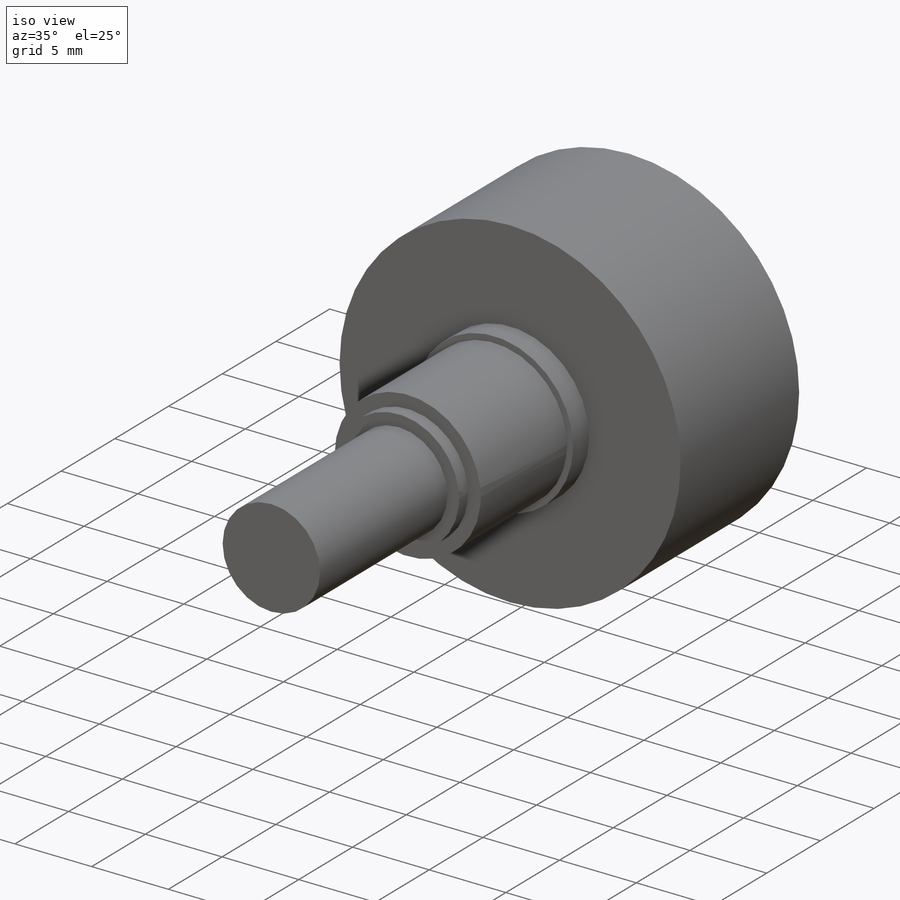
[diagram: iso view]
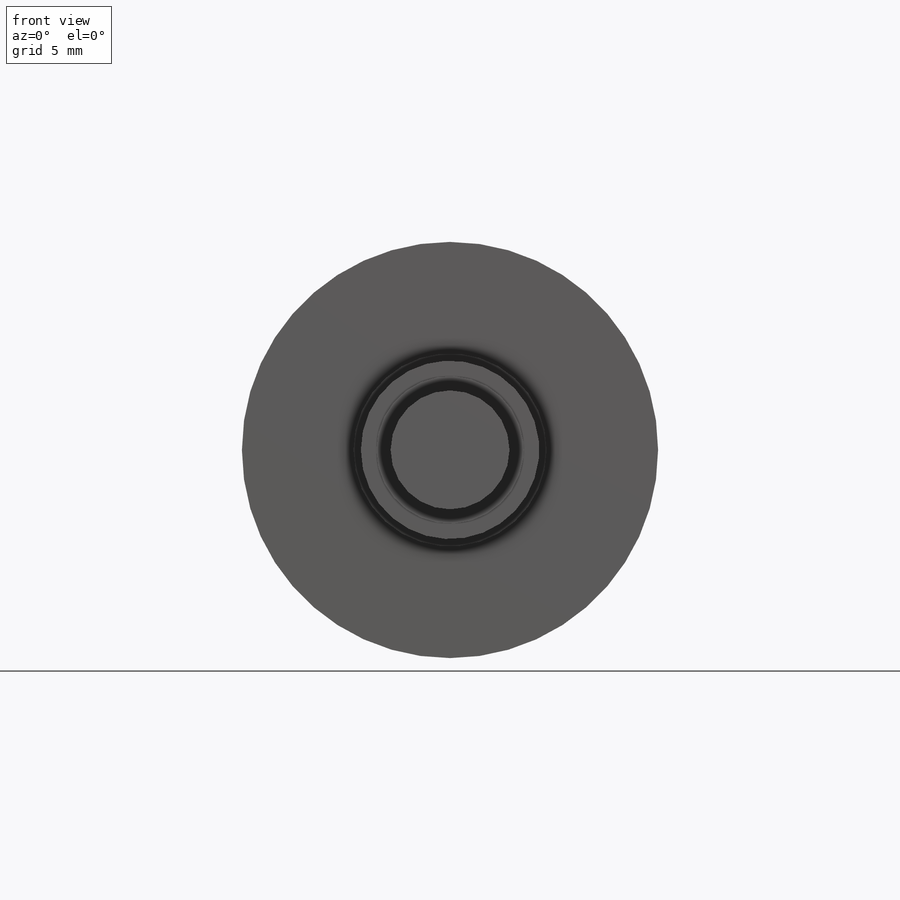
[diagram: front view]
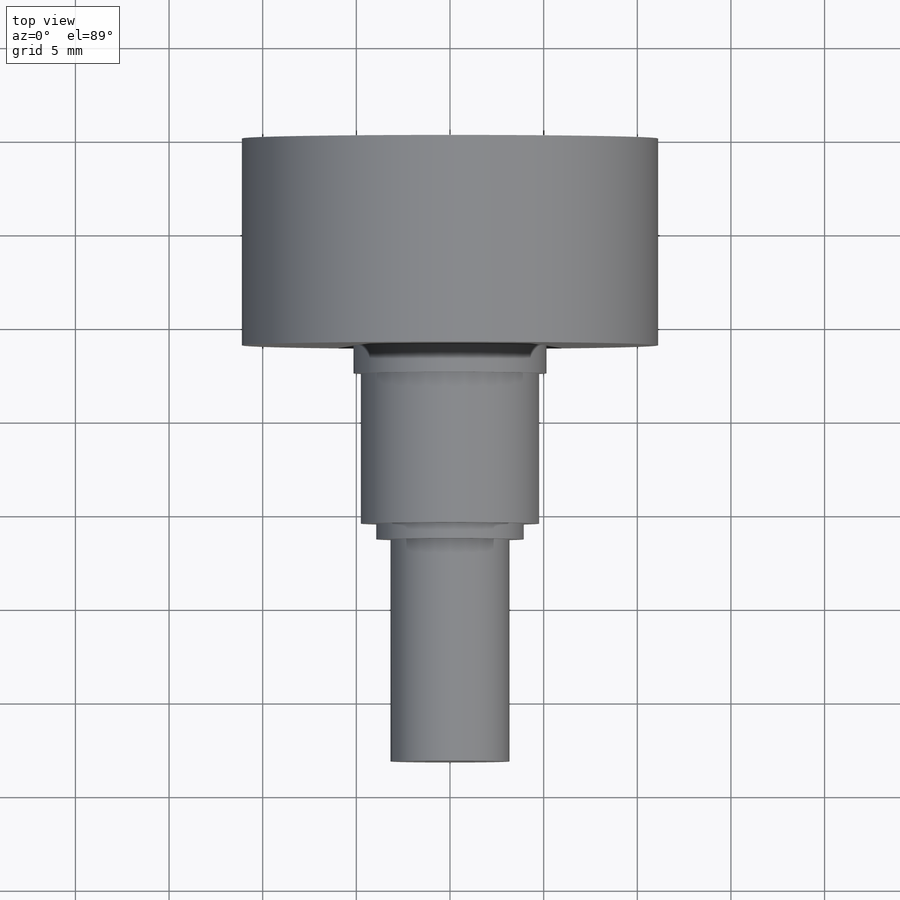
[diagram: top view]
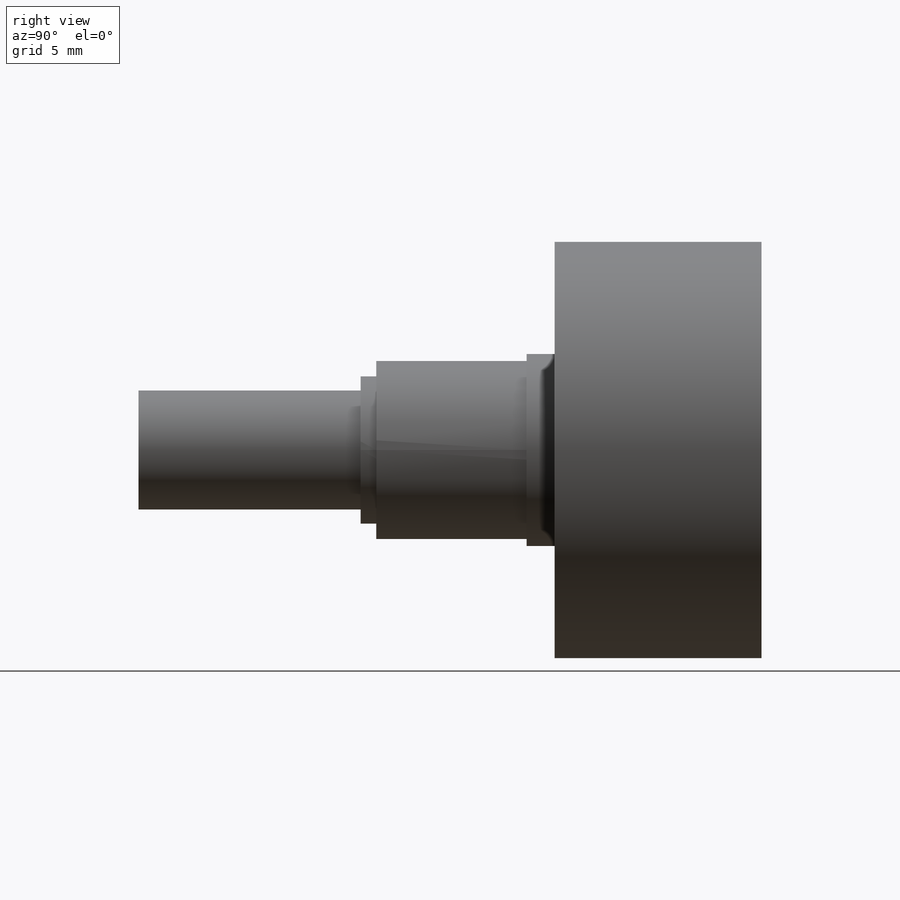
[diagram: right view]
SOLIDWORKS PART (.sldprt)
format: sldprt  version: not decoded by parser v0  size: 185,856 bytes
history: native  units: mm
features: sketch x5, extrude x5, material x1 (+13 scaffold rows collapsed)
feature tree (24):
  scaffold x13  (default folders/planes/origin — collapsed)
  material  "6061-T6 (SS)"
  sketch  "Sketch1"  dims[D1=22.225mm]
  extrude  "Boss-Extrude1"  Depth=11.049mm
  sketch  "Sketch2"  dims[D1=10.3124mm]
  extrude  "Boss-Extrude2"  Depth=1.4986mm
  sketch  "Sketch3"  dims[D1=9.525mm]
  extrude  "Boss-Extrude5"  Depth=9.525mm
  sketch  "Sketch4"  dims[D1=7.874mm]
  extrude  "Boss-Extrude6"  Depth=0.8382mm
  sketch  "Sketch5"  dims[D1=6.35mm]
  extrude  "Boss-Extrude7"  Depth=22.225mm
decode coverage: 10 of 10 modeling features carry decoded parameters
note: suppression state not decoded; provenance and decode notes live in map.json
